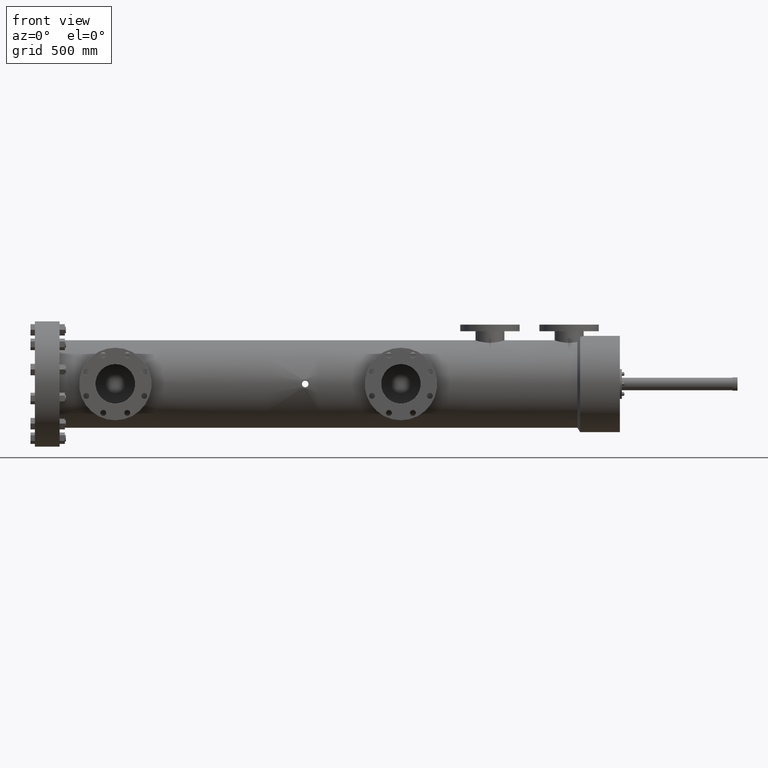
[diagram: clean part render]
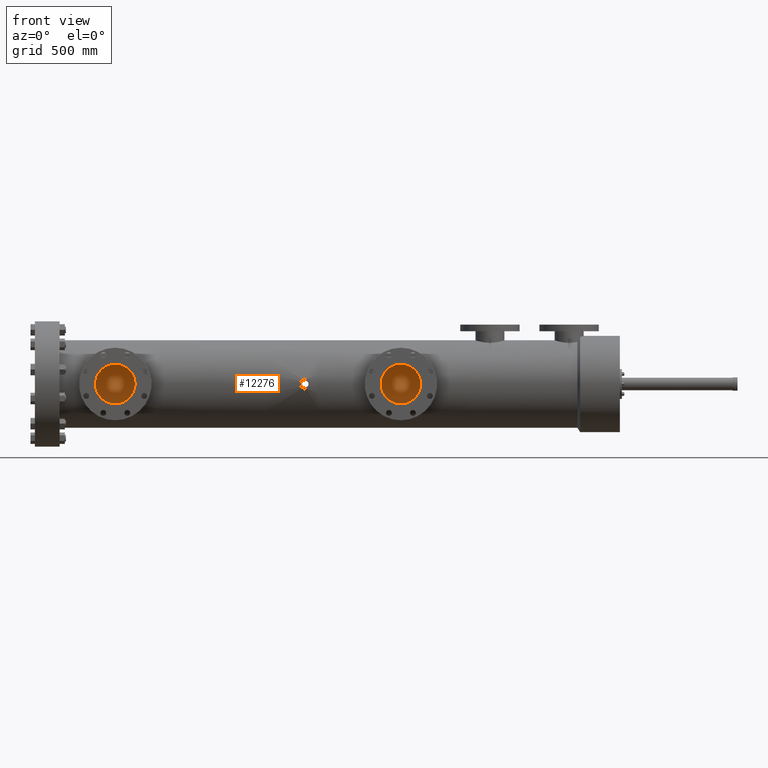
[diagram: same view with one face highlighted and labeled with its STEP entity id]
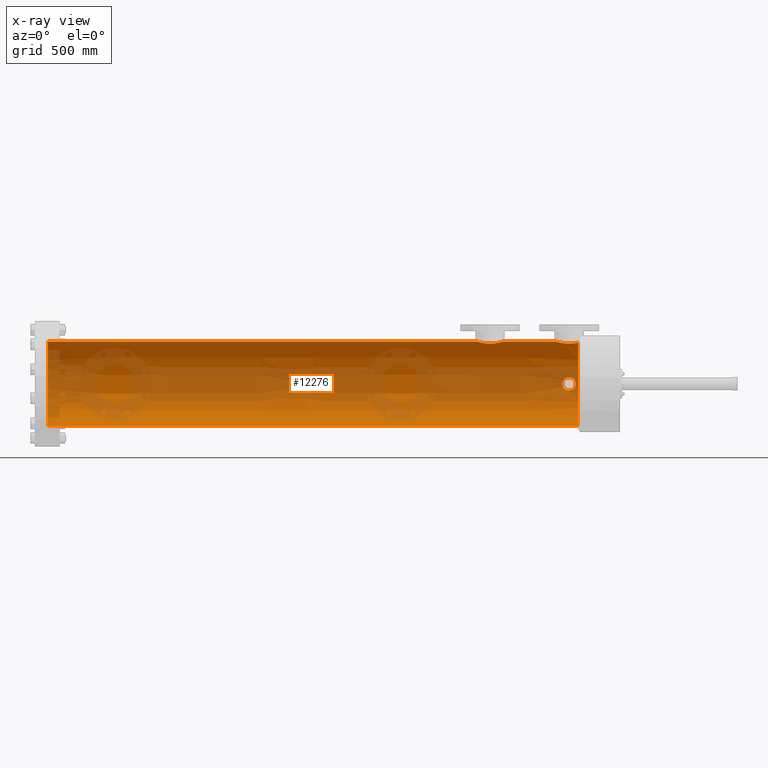
[diagram: x-ray of the same camera — body ghosted, the highlighted face saturated]
A machine part, front view. The second image highlights one B-rep face of the part: STEP entity #12276.
The next image is the same camera in x-ray: the body ghosted, the highlighted face saturated — about 43% of this face is hidden behind the body in this view.
In plain terms, the highlighted conical surface has half-angle 0.002 deg.
Its self-contained STEP definition (entity closure, byte-faithful):
#39 = CARTESIAN_POINT ( 'NONE',  ( 774.7515573465067291, 190.5651086152822131, -0.5828154985786139219 ) ) ;
#95 = CARTESIAN_POINT ( 'NONE',  ( 735.2943642979090555, 190.5763399683012551, 0.4246746664004160121 ) ) ;
#156 = CARTESIAN_POINT ( 'NONE',  ( 776.3576086705513717, 185.9998333693068560, 6.161792473806992021 ) ) ;
#171 = CARTESIAN_POINT ( 'NONE',  ( 735.1030366188920198, 190.5870761184628464, 0.2063124371501165732 ) ) ;
#173 = CARTESIAN_POINT ( 'NONE',  ( 776.5165305431140723, 190.5842960001401707, -0.3061531395251342325 ) ) ;
#191 = CARTESIAN_POINT ( 'NONE',  ( 762.0591038448136487, 185.4856544658965731, 6.292645835624000483 ) ) ;
#243 = CARTESIAN_POINT ( 'NONE',  ( 774.2058555722042001, 185.6338308467375384, 6.259605196570538155 ) ) ;
#277 = CARTESIAN_POINT ( 'NONE',  ( 761.6178618207909494, 184.6200872226516481, 6.413477519804275495 ) ) ;
#324 = CARTESIAN_POINT ( 'NONE',  ( 773.9653253697863420, 185.3641546145277630, 6.316673119454299545 ) ) ;
#356 = CARTESIAN_POINT ( 'NONE',  ( 762.6755032292510350, 185.9594205289845661, 6.173511399441822256 ) ) ;
#401 = CARTESIAN_POINT ( 'NONE',  ( 773.9508210611377308, 185.3445829754314218, 6.320369488365783717 ) ) ;
#436 = CARTESIAN_POINT ( 'NONE',  ( 761.6936061369038953, 184.8712320950696153, 6.390765523371238821 ) ) ;
#488 = CARTESIAN_POINT ( 'NONE',  ( 775.7223654910030746, 186.1573915326143549, 6.112544261708623416 ) ) ;
#523 = CARTESIAN_POINT ( 'NONE',  ( 762.9514890501737909, 186.0671911915963221, 6.140886457887309469 ) ) ;
#694 = LINE ( 'NONE', #2256, #7138 ) ;
#801 = CARTESIAN_POINT ( 'NONE',  ( 735.9561004864335700, 190.5831985610140009, -0.3053144933246385029 ) ) ;
#861 = CARTESIAN_POINT ( 'NONE',  ( 765.4978910570342805, 184.6825818361337781, 6.409049507614184016 ) ) ;
#1227 = CARTESIAN_POINT ( 'NONE',  ( 735.9653586397062099, 190.5837976854255942, 0.2914875042189448151 ) ) ;
#1231 = ORIENTED_EDGE ( 'NONE', *, *, #3403, .F. ) ;
#1289 = CARTESIAN_POINT ( 'NONE',  ( 775.4330240403340895, 190.5143722272065361, 0.9932728679551260376 ) ) ;
#1290 = EDGE_CURVE ( 'NONE', #25036, #14658, #3951, .T. ) ;
#1374 = CARTESIAN_POINT ( 'NONE',  ( 776.5579970289397806, 190.5905631075838755, 0.1306359843923250164 ) ) ;
#1461 = CARTESIAN_POINT ( 'NONE',  ( 774.6965750805709376, 190.5722417299324434, 0.5005380053930319484 ) ) ;
#1631 = CARTESIAN_POINT ( 'NONE',  ( 775.7912782403737992, 190.5173056736092860, 0.9743293047734086221 ) ) ;
#1696 = CARTESIAN_POINT ( 'NONE',  ( 773.5649761354594602, 184.1634428412521913, 6.430128034697045969 ) ) ;
#1800 = CARTESIAN_POINT ( 'NONE',  ( 735.2288322069838387, 190.5793748844642153, -0.3760375926104062572 ) ) ;
#1833 = CARTESIAN_POINT ( 'NONE',  ( 775.1220539202734017, 190.5286541556944258, -0.8971532133720813151 ) ) ;
#1876 = CARTESIAN_POINT ( 'NONE',  ( 698.3182562679656940, 184.1613553879231517, 0.0000000000000000000 ) ) ;
#1888 = CARTESIAN_POINT ( 'NONE',  ( 735.3980331656415501, 190.5729016295352665, -0.4737400652188835104 ) ) ;
#1896 = CARTESIAN_POINT ( 'NONE',  ( 735.5587819821047333, 190.5709101236874403, 0.5000000000000544009 ) ) ;
#1962 = CARTESIAN_POINT ( 'NONE',  ( 735.1818171770789831, 190.5819325235951283, 0.3301327903724006751 ) ) ;
#2049 = VERTEX_POINT ( 'NONE', #22262 ) ;
#2054 = CARTESIAN_POINT ( 'NONE',  ( 735.0715943200171978, 190.5893840140284397, -0.1136597667678679174 ) ) ;
#2119 = CARTESIAN_POINT ( 'NONE',  ( 776.2444310484091829, 186.0451164575074472, 6.148109644990564782 ) ) ;
#2154 = CARTESIAN_POINT ( 'NONE',  ( 762.3469416205480229, 185.7508387383043669, 6.230388685319546482 ) ) ;
#2167 = CARTESIAN_POINT ( 'NONE',  ( 774.5667925363004542, 190.5911983280040545, -0.06568513254108573896 ) ) ;
#2256 = CARTESIAN_POINT ( 'NONE',  ( 698.3182562679656940, 184.1613553879231517, 6.427948391113559978 ) ) ;
#2312 = CARTESIAN_POINT ( 'NONE',  ( 763.2371024747344563, 186.1374008669916407, 6.118670490266116424 ) ) ;
#2369 = CARTESIAN_POINT ( 'NONE',  ( 775.4297743759275363, 186.1612281877528687, 6.111292355305110391 ) ) ;
#2404 = CARTESIAN_POINT ( 'NONE',  ( 762.8274303095962523, 186.0226302417981685, 6.154541459335480802 ) ) ;
#2430 = CARTESIAN_POINT ( 'NONE',  ( 736.0074432802209685, 190.5866022122447987, -0.2212936326735157055 ) ) ;
#2448 = CARTESIAN_POINT ( 'NONE',  ( 773.9226440350281564, 185.3050793387506303, 6.327636448114230205 ) ) ;
#2489 = CARTESIAN_POINT ( 'NONE',  ( 763.4330672459097968, 186.1593309147696402, 6.111536047584561260 ) ) ;
#2515 = CARTESIAN_POINT ( 'NONE',  ( 736.0213825182054279, 190.5875866659651763, -0.1918188493781887438 ) ) ;
#2752 = VERTEX_POINT ( 'NONE', #16517 ) ;
#2935 = CARTESIAN_POINT ( 'NONE',  ( 774.5711422764557028, 190.5905125734019521, 0.1303889035314003964 ) ) ;
#2944 = CARTESIAN_POINT ( 'NONE',  ( 736.0428132569561512, 190.5891713527556135, 0.1295509383142088300 ) ) ;
#3030 = CARTESIAN_POINT ( 'NONE',  ( 736.0523771706161824, 190.5899012489577444, 0.08143230342846627390 ) ) ;
#3184 = CARTESIAN_POINT ( 'NONE',  ( 774.6174371842620303, 190.5835287572200230, 0.3219059481049643678 ) ) ;
#3205 = CARTESIAN_POINT ( 'NONE',  ( 735.5587819821047333, 190.5709101236874403, 0.5000000000000544009 ) ) ;
#3403 = EDGE_CURVE ( 'NONE', #14658, #14939, #22492, .T. ) ;
#3442 = CARTESIAN_POINT ( 'NONE',  ( 774.9815895603047693, 190.5399600805375258, 0.8129069057186742997 ) ) ;
#3474 = CARTESIAN_POINT ( 'NONE',  ( 765.5653099672541657, 184.1634323763099133, 6.429896278714609004 ) ) ;
#3531 = CARTESIAN_POINT ( 'NONE',  ( 776.3779177030537539, 190.5651919722611183, 0.5824305359296086948 ) ) ;
#3612 = CARTESIAN_POINT ( 'NONE',  ( 775.8699139778052540, 190.5206590914466176, 0.9522022155647410502 ) ) ;
#3621 = B_SPLINE_CURVE_WITH_KNOTS ( 'NONE', 3,
 ( #20368, #18295, #8523, #24033, #24303, #12275, #16376, #22271, #18033, #10461, #12188, #16295, #12518, #6625, #801, #18119, #8259, #2430, #2515, #4477, #6541, #16209, #18204, #6452, #24213, #16723, #12863, #3030, #2944, #14824, #12604, #16817, #12953, #20716, #1227, #4990, #4907, #18730, #22785, #14913, #14576, #18557, #6803, #10972, #6716, #16553, #20452, #14656, #6883, #3205 ),
 .UNSPECIFIED., .F., .F.,
 ( 4, 2, 2, 2, 2, 2, 2, 2, 2, 1, 2, 2, 2, 2, 2, 2, 2, 2, 2, 2, 2, 2, 1, 2, 2, 4 ),
 ( 0.05108341003128268054, 0.05356536368776870782, 0.05480634051601171453, 0.05604731734425472817, 0.05852927100074074851, 0.05977024782898817529, 0.06101122465723560206, 0.06349317831373786636, 0.06473415514198896381, 0.06597513197024004739, 0.06721610879849113096, 0.06845708562674221453, 0.07093903928324640784, 0.07218001611149851837, 0.07342099293975061503, 0.07590294659625476670, 0.07714392342450687723, 0.07838490025275898776, 0.07962587708101109829, 0.08086685390926320882, 0.08334880756577496552, 0.08458978439403083693, 0.08583076122228672222, 0.08707173805054259363, 0.08831271487879846505, 0.09079466853531022175 ),
 .UNSPECIFIED. ) ;
#3641 = VECTOR ( 'NONE', #16315, 39.37007874015748854 ) ;
#3650 = DIRECTION ( 'NONE',  ( 0.0000000000000000000, 0.0000000000000000000, -1.000000000000000000 ) ) ;
#3677 = B_SPLINE_CURVE_WITH_KNOTS ( 'NONE', 3,
 ( #4117, #11988, #4367, #14127, #277, #22160, #10001, #21911, #436, #11904, #6170, #16181, #13959, #8399, #12066, #8064, #191, #10348, #19821, #17841, #13878, #2154, #6093, #21831, #356, #2404, #16089, #23835, #523, #15922, #16010, #2312, #18088, #14214, #2489, #4283, #19904, #4447, #20076, #8141, #4199, #17917, #18002, #6248, #10087, #8319, #14046, #19991, #8233, #21987, #10174, #22077, #10262, #6423, #20166, #861, #12657, #22242, #20601, #24275 ),
 .UNSPECIFIED., .F., .F.,
 ( 4, 2, 2, 2, 2, 2, 2, 2, 2, 2, 2, 2, 2, 2, 2, 2, 2, 2, 2, 2, 2, 2, 2, 2, 2, 2, 2, 2, 2, 4 ),
 ( 0.2096621842787107781, 0.2196502926755316276, 0.2221473197747369510, 0.2246443468739423022, 0.2296384010723498681, 0.2346324552707574340, 0.2371294823699612309, 0.2396265094691650277, 0.2496146178659764958, 0.2521116449651775171, 0.2546086720643785384, 0.2596027262627708665, 0.2695908346595642380, 0.2720878617587623727, 0.2745848888579604519, 0.2795789430563457856, 0.2845729972547310638, 0.2870700243539290319, 0.2895670514531269446, 0.2995551598499187063, 0.3045492140483197496, 0.3095432682467208485, 0.3195313766435142755, 0.3295194850403077025, 0.3345135392387081352, 0.3395075934371085680, 0.3494957018339093779, 0.3544897560323110319, 0.3594838102307126304, 0.3694719186275133294 ),
 .UNSPECIFIED. ) ;
#3769 = CARTESIAN_POINT ( 'NONE',  ( 765.5653092483007640, 184.1617015782632620, 6.429896614148695733 ) ) ;
#3777 = CARTESIAN_POINT ( 'NONE',  ( 735.1101247131223317, 190.5865758934488099, 0.2213049319171640772 ) ) ;
#3859 = CARTESIAN_POINT ( 'NONE',  ( 735.3373091580809842, 190.5747125784820355, 0.4485746766602241586 ) ) ;
#3886 = CARTESIAN_POINT ( 'NONE',  ( 774.5680181602683660, 190.5910081349346967, -0.08221355146656098012 ) ) ;
#3951 = B_SPLINE_CURVE_WITH_KNOTS ( 'NONE', 3,
 ( #1696, #21877, #23969, #23893, #12034, #20128, #8196, #4086, #6138, #10136, #12114, #6219, #2448, #401, #324, #17810, #8036, #6061, #243, #14013, #4248, #19786, #15800, #11872, #17968, #21798, #22038, #15886, #13926, #21953, #14178, #14094, #12210, #2369, #16054, #4334, #18055, #488, #16141, #6301, #4165, #4411, #19871, #2119, #18142, #156, #17887, #8107, #18229, #10653, #16577, #14595, #10397, #4666 ),
 .UNSPECIFIED., .F., .F.,
 ( 4, 2, 2, 2, 2, 2, 2, 2, 2, 2, 2, 2, 2, 2, 2, 2, 2, 2, 2, 2, 2, 2, 2, 2, 2, 2, 4 ),
 ( 0.1184754652731668384, 0.1258794878670591311, 0.1332835104609514376, 0.1369855217578963280, 0.1406875330548412184, 0.1480915556487286122, 0.1499425612972024591, 0.1517935669456763059, 0.1554955782426197253, 0.1628996008365015125, 0.1666016121334464306, 0.1703036234303913488, 0.1777076460242900946, 0.1851116686181888404, 0.1869626742666611330, 0.1888136799151334810, 0.1925156912120677410, 0.1999197138059362611, 0.2017707194544033911, 0.2036217251028704933, 0.2073237363998044480, 0.2147277589936614217, 0.2184297702905899363, 0.2202807759390493780, 0.2221317815875087920, 0.2295358041813159999, 0.2369398267751232079 ),
 .UNSPECIFIED. ) ;
#3972 = CARTESIAN_POINT ( 'NONE',  ( 774.9042477869141976, 190.5473821585410690, -0.7535844624674279402 ) ) ;
#4054 = CARTESIAN_POINT ( 'NONE',  ( 774.5651704203149848, 190.5914502002733286, -0.03278521875423418691 ) ) ;
#4063 = VERTEX_POINT ( 'NONE', #24912 ) ;
#4086 = CARTESIAN_POINT ( 'NONE',  ( 773.7146748623202939, 184.9242055959032882, 6.384885541127463426 ) ) ;
#4099 = CARTESIAN_POINT ( 'NONE',  ( 735.0756269763263617, 190.5890787915352291, -0.1297276018896044436 ) ) ;
#4111 = B_SPLINE_CURVE_WITH_KNOTS ( 'NONE', 3,
 ( #1896, #13139, #23941, #24454, #11798, #7971, #9907, #13694, #3859, #11889, #95, #19546, #11556, #1962, #21643, #21733, #7793, #3777, #171, #15820, #13862, #5741, #17652, #23327, #5908, #19462, #17744, #2054, #4099, #7706, #17823, #15732, #5993, #19721, #6077, #25267, #19803, #1800, #25354, #9660, #15475, #11633, #13607, #1888, #15560, #23732, #16245, #19972, #4350 ),
 .UNSPECIFIED., .F., .F.,
 ( 4, 2, 2, 2, 2, 2, 2, 2, 2, 2, 2, 2, 2, 2, 2, 1, 2, 2, 2, 2, 2, 2, 2, 2, 4 ),
 ( 0.01136161700840032651, 0.01260292304035720741, 0.01384422907231408657, 0.01632684113623822028, 0.01756814716820032096, 0.01880945320016242511, 0.02129206526409538336, 0.02377467732802833814, 0.02501598335999477216, 0.02625728939196120271, 0.02873990145589406381, 0.02998120748786049436, 0.03122251351982692491, 0.03370512558375977907, 0.03494643161572619228, 0.03618773764769260548, 0.03742904367965901868, 0.03867034971162543189, 0.04115296177555825136, 0.04239426780752465762, 0.04363557383949107082, 0.04611818590341507096, 0.04735949193538196295, 0.04860079796734885493, 0.05108341003128268054 ),
 .UNSPECIFIED. ) ;
#4117 = CARTESIAN_POINT ( 'NONE',  ( 761.5653099672540520, 184.1634323763099133, 6.429780394193252313 ) ) ;
#4165 = CARTESIAN_POINT ( 'NONE',  ( 775.8686829819263266, 186.1408480317097656, 6.117932568625019663 ) ) ;
#4199 = CARTESIAN_POINT ( 'NONE',  ( 764.0854868645545821, 186.0957372953721460, 6.132013986825921137 ) ) ;
#4248 = CARTESIAN_POINT ( 'NONE',  ( 774.3544131580453040, 185.7562028980829325, 6.229299022440591749 ) ) ;
#4253 = VERTEX_POINT ( 'NONE', #21933 ) ;
#4283 = CARTESIAN_POINT ( 'NONE',  ( 763.4992915001399751, 186.1626173790483278, 6.110462681510800742 ) ) ;
#4334 = CARTESIAN_POINT ( 'NONE',  ( 775.6489126529592113, 186.1618300520264881, 6.111090658187568359 ) ) ;
#4350 = CARTESIAN_POINT ( 'NONE',  ( 735.5587819821047333, 190.5709101236874403, -0.5000000000000544009 ) ) ;
#4367 = CARTESIAN_POINT ( 'NONE',  ( 761.5780996170980188, 184.4252616566900542, 6.425681895108833253 ) ) ;
#4380 = EDGE_CURVE ( 'NONE', #22680, #4063, #3621, .T. ) ;
#4411 = CARTESIAN_POINT ( 'NONE',  ( 776.0124298476180229, 186.1151758452344609, 6.126203694765413488 ) ) ;
#4447 = CARTESIAN_POINT ( 'NONE',  ( 763.6981183716425221, 186.1634055732376964, 6.110210297705883420 ) ) ;
#4477 = CARTESIAN_POINT ( 'NONE',  ( 736.0323851971148770, 190.5883955954360545, -0.1611437048480106604 ) ) ;
#4666 = CARTESIAN_POINT ( 'NONE',  ( 776.9391352988310473, 185.6166071794199013, 6.263389678457415677 ) ) ;
#4907 = CARTESIAN_POINT ( 'NONE',  ( 735.9346085877175483, 190.5819214555514804, 0.3301901266214414821 ) ) ;
#4990 = CARTESIAN_POINT ( 'NONE',  ( 735.9555194098885522, 190.5831800014929911, 0.3047467318944301895 ) ) ;
#5138 = CARTESIAN_POINT ( 'NONE',  ( 774.6284677939573839, 190.5819066329850386, 0.3526728847632236152 ) ) ;
#5200 = CARTESIAN_POINT ( 'NONE',  ( 696.5682505649399445, 184.1613553879231517, 0.0000000000000000000 ) ) ;
#5218 = CARTESIAN_POINT ( 'NONE',  ( 774.9550031683277211, 190.5424520775293331, 0.7931664323379434833 ) ) ;
#5391 = CARTESIAN_POINT ( 'NONE',  ( 776.4325421556866331, 190.5722838632141816, 0.5006125489082950963 ) ) ;
#5477 = CARTESIAN_POINT ( 'NONE',  ( 775.3051792424853375, 190.5185452381206517, 0.9661422096112813884 ) ) ;
#5516 = EDGE_CURVE ( 'NONE', #19995, #20093, #20772, .T. ) ;
#5732 = CARTESIAN_POINT ( 'NONE',  ( 765.5653099672541657, 184.1630862371837907, 6.429896390524644900 ) ) ;
#5742 = CARTESIAN_POINT ( 'NONE',  ( 773.5649772248250429, 184.1613553879231517, 6.430128373560217270 ) ) ;
#5741 = CARTESIAN_POINT ( 'NONE',  ( 735.0652182703837525, 190.5898702291905806, 0.08162045969467945916 ) ) ;
#5859 = CARTESIAN_POINT ( 'NONE',  ( 774.6681234535485601, 190.5762540947816888, -0.4430102134294776617 ) ) ;
#5908 = CARTESIAN_POINT ( 'NONE',  ( 735.0587756646835942, 190.5903686846785092, 0.01612385488753306784 ) ) ;
#5924 = FACE_BOUND ( 'NONE', #15536, .T. ) ;
#5938 = CARTESIAN_POINT ( 'NONE',  ( 774.6986405103549487, 190.5720471493673358, -0.5008377719357305358 ) ) ;
#5942 = ORIENTED_EDGE ( 'NONE', *, *, #7241, .T. ) ;
#5983 = DIRECTION ( 'NONE',  ( 0.0000000000000000000, 0.0000000000000000000, -1.000000000000000000 ) ) ;
#5993 = CARTESIAN_POINT ( 'NONE',  ( 735.1255078316979734, 190.5855205362816491, -0.2500820559305814150 ) ) ;
#6019 = EDGE_LOOP ( 'NONE', ( #18010, #14016 ) ) ;
#6025 = CARTESIAN_POINT ( 'NONE',  ( 775.7275046070672033, 190.5154085755088715, -0.9865954871636023471 ) ) ;
#6061 = CARTESIAN_POINT ( 'NONE',  ( 774.1369496287398988, 185.5670185656323099, 6.275051840483104826 ) ) ;
#6077 = CARTESIAN_POINT ( 'NONE',  ( 735.1614385998474290, 190.5831769867313596, -0.3052874919526218922 ) ) ;
#6093 = CARTESIAN_POINT ( 'NONE',  ( 762.3992060489816822, 185.7895974161339154, 6.220338775416065502 ) ) ;
#6138 = CARTESIAN_POINT ( 'NONE',  ( 773.7336677925154618, 184.9688285508126455, 6.379384783861752339 ) ) ;
#6156 = CARTESIAN_POINT ( 'NONE',  ( 776.5113868111652664, 190.5835348962229432, -0.3217127710399183549 ) ) ;
#6170 = CARTESIAN_POINT ( 'NONE',  ( 761.7717005080988883, 185.0507111344743123, 6.368250640194803580 ) ) ;
#6185 = CARTESIAN_POINT ( 'NONE',  ( 773.5649761354594602, 184.1627469561558144, 6.430128260606646329 ) ) ;
#6219 = CARTESIAN_POINT ( 'NONE',  ( 773.9089447591499038, 185.2851132665824991, 6.331213692691389561 ) ) ;
#6248 = CARTESIAN_POINT ( 'NONE',  ( 764.4551307323952187, 185.9593525139665928, 6.173582528649150802 ) ) ;
#6301 = CARTESIAN_POINT ( 'NONE',  ( 775.8202886081427323, 186.1476886423984354, 6.115709268154783551 ) ) ;
#6423 = CARTESIAN_POINT ( 'NONE',  ( 765.4370497348290883, 184.8711415807422043, 6.390885130942090875 ) ) ;
#6452 = CARTESIAN_POINT ( 'NONE',  ( 736.0587599829913188, 190.5903954531152920, -0.03294443695781966441 ) ) ;
#6541 = CARTESIAN_POINT ( 'NONE',  ( 736.0419006071064132, 190.5891040586598137, -0.1298602828305510382 ) ) ;
#6625 = CARTESIAN_POINT ( 'NONE',  ( 735.9354150534086330, 190.5819359457511553, -0.3304706690224575860 ) ) ;
#6716 = CARTESIAN_POINT ( 'NONE',  ( 735.7196077471760418, 190.5729130625650214, 0.4737116116099782115 ) ) ;
#6781 = AXIS2_PLACEMENT_3D ( 'NONE', #1876, #11876, #5983 ) ;
#6803 = CARTESIAN_POINT ( 'NONE',  ( 735.7797735717568912, 190.5747089254424793, 0.4488097811508083845 ) ) ;
#6883 = CARTESIAN_POINT ( 'NONE',  ( 735.5914012567219515, 190.5709110715756935, 0.5000000000000545120 ) ) ;
#6886 = EDGE_CURVE ( 'NONE', #16412, #4253, #9334, .T. ) ;
#6927 = CARTESIAN_POINT ( 'NONE',  ( 761.5653099672541657, 184.1630862205069832, 6.429780506010695618 ) ) ;
#7102 = CARTESIAN_POINT ( 'NONE',  ( 761.5653106862249615, 184.1617015615828734, 6.429780729675043993 ) ) ;
#7126 = CARTESIAN_POINT ( 'NONE',  ( 776.2238368586798742, 190.5474227775704605, 0.7524136650834568618 ) ) ;
#7138 = VECTOR ( 'NONE', #19933, 39.37007874015748854 ) ;
#7155 = CARTESIAN_POINT ( 'NONE',  ( 776.2827637103415555, 190.5538161385228477, -0.6958044137371428572 ) ) ;
#7208 = CARTESIAN_POINT ( 'NONE',  ( 775.6297117973025479, 190.5136502155374387, 0.9978332816766967150 ) ) ;
#7241 = EDGE_CURVE ( 'NONE', #4253, #16412, #17578, .T. ) ;
#7283 = EDGE_CURVE ( 'NONE', #20093, #25036, #22864, .T. ) ;
#7379 = CARTESIAN_POINT ( 'NONE',  ( 776.5006976870248536, 190.5819578698050805, 0.3527330495188100712 ) ) ;
#7466 = CARTESIAN_POINT ( 'NONE',  ( 775.8854943846647529, 190.5214270309551807, 0.9470667878704147613 ) ) ;
#7626 = CARTESIAN_POINT ( 'NONE',  ( 765.5653088887836475, 184.1613553879231517, 6.429896614138280064 ) ) ;
#7706 = CARTESIAN_POINT ( 'NONE',  ( 735.0851477865085144, 190.5883704253711812, -0.1610548324724067337 ) ) ;
#7738 = CARTESIAN_POINT ( 'NONE',  ( 774.6755019720856126, 190.5752265895092989, -0.4576345486871723489 ) ) ;
#7793 = CARTESIAN_POINT ( 'NONE',  ( 735.1255989041812882, 190.5855143634568094, 0.2502431595524183816 ) ) ;
#7827 = CARTESIAN_POINT ( 'NONE',  ( 775.6949801740795465, 190.5146569519271225, -0.9914180172047798445 ) ) ;
#7917 = CARTESIAN_POINT ( 'NONE',  ( 774.9545754298763995, 190.5423143409278453, -0.7948377144225605706 ) ) ;
#7971 = CARTESIAN_POINT ( 'NONE',  ( 735.4288825860993484, 190.5721423483821582, 0.4839372267597107924 ) ) ;
#7972 = CARTESIAN_POINT ( 'NONE',  ( 776.5387152897998249, 190.5876206989142645, -0.2275872862674983843 ) ) ;
#8001 = CARTESIAN_POINT ( 'NONE',  ( 775.1517788645860492, 190.5266529383184775, -0.9112017885401755279 ) ) ;
#8036 = CARTESIAN_POINT ( 'NONE',  ( 774.0407125379967965, 185.4591826357098512, 6.297914156660559648 ) ) ;
#8064 = CARTESIAN_POINT ( 'NONE',  ( 761.9767636086578477, 185.3855459495601963, 6.313138131960899457 ) ) ;
#8075 = CARTESIAN_POINT ( 'NONE',  ( 774.8020551388348167, 190.5589117818841771, -0.6468733841777588589 ) ) ;
#8107 = CARTESIAN_POINT ( 'NONE',  ( 776.4242983204763959, 185.9695876427171299, 6.170739453635887273 ) ) ;
#8141 = CARTESIAN_POINT ( 'NONE',  ( 764.0215894904218885, 186.1117937352971978, 6.126905243673303580 ) ) ;
#8196 = CARTESIAN_POINT ( 'NONE',  ( 773.6798193787295759, 184.8331881456786618, 6.395102154961294083 ) ) ;
#8233 = CARTESIAN_POINT ( 'NONE',  ( 765.0695170145700104, 185.4831352408266412, 6.292767917103274655 ) ) ;
#8259 = CARTESIAN_POINT ( 'NONE',  ( 735.9920120874775193, 190.5855426804068884, -0.2501589656360618252 ) ) ;
#8319 = CARTESIAN_POINT ( 'NONE',  ( 764.7885725466896929, 185.7511752206361280, 6.230690661442954692 ) ) ;
#8399 = CARTESIAN_POINT ( 'NONE',  ( 761.8683360875546668, 185.2223754020930926, 6.341706733894418413 ) ) ;
#8523 = CARTESIAN_POINT ( 'NONE',  ( 735.6243505494521742, 190.5711677812024334, -0.4967514741937444911 ) ) ;
#8980 = CARTESIAN_POINT ( 'NONE',  ( 761.5653110457245702, 184.1613553879231517, 6.429780729685459661 ) ) ;
#9002 = CARTESIAN_POINT ( 'NONE',  ( 774.5647684555348178, 190.5915127265639057, 0.06549410095123443798 ) ) ;
#9008 = CARTESIAN_POINT ( 'NONE',  ( 776.0929686366641818, 190.5352734182307870, -0.8489609191380786957 ) ) ;
#9166 = CARTESIAN_POINT ( 'NONE',  ( 775.2110621088589824, 190.5230850817602857, 0.9357990418020231127 ) ) ;
#9277 = FACE_OUTER_BOUND ( 'NONE', #20172, .T. ) ;
#9324 = CARTESIAN_POINT ( 'NONE',  ( 776.0079079733128538, 190.5285105230398699, 0.8985785668431892637 ) ) ;
#9334 = B_SPLINE_CURVE_WITH_KNOTS ( 'NONE', 3,
 ( #14563, #9002, #2935, #16622, #12845, #10959, #24706, #3184, #5138, #16538, #1461, #13278, #17228, #23159, #19057, #5218, #3442, #22855, #18975, #9166, #24870, #5477, #17044, #1289, #19217, #25105, #11385, #7208, #13195, #13360, #11301, #1631, #22935, #3612, #7466, #21213, #19136, #9324, #20950, #9409, #11133, #7126, #17139, #20868, #13107, #16960, #3531, #5391, #15312, #7379, #21126, #17311, #23017, #1374, #23089, #15067 ),
 .UNSPECIFIED., .F., .F.,
 ( 4, 2, 2, 2, 2, 2, 2, 2, 2, 2, 2, 2, 2, 2, 2, 2, 2, 2, 2, 2, 2, 2, 2, 2, 2, 2, 2, 4 ),
 ( 0.09543672868724367708, 0.1004064080286519167, 0.1016488278640035187, 0.1028912476993551206, 0.1053760873700582273, 0.1103457667114645518, 0.1153154460528708902, 0.1178002857235778134, 0.1202851253942847365, 0.1252548047356985550, 0.1277396444064054781, 0.1302244840771123735, 0.1351941634185157837, 0.1364365832538666223, 0.1376790030892174888, 0.1401638427599192216, 0.1426486824306209544, 0.1438911022659718209, 0.1451335221013226873, 0.1501032014427066963, 0.1525880411133986869, 0.1550728807840907053, 0.1575577204547827237, 0.1600425601254747421, 0.1650122394668587233, 0.1674970791375508250, 0.1699819188082429267, 0.1749515981496271577 ),
 .UNSPECIFIED. ) ;
#9409 = CARTESIAN_POINT ( 'NONE',  ( 776.1466501386690879, 190.5399076604840900, 0.8135823789142834217 ) ) ;
#9660 = CARTESIAN_POINT ( 'NONE',  ( 735.2675478474928923, 190.5775003657300033, -0.4067551319959890610 ) ) ;
#9689 = CARTESIAN_POINT ( 'NONE',  ( 775.4994514043725076, 190.5135841292262171, -0.9982345522402966687 ) ) ;
#9748 = CARTESIAN_POINT ( 'NONE',  ( 775.8871169706096680, 190.5212442407757010, -0.9486120386880455557 ) ) ;
#9859 = CARTESIAN_POINT ( 'NONE',  ( 775.4012776314054918, 190.5153488320859196, -0.9869369833730676778 ) ) ;
#9907 = CARTESIAN_POINT ( 'NONE',  ( 735.3977096099723667, 190.5728575839785606, 0.4744782333907113792 ) ) ;
#9938 = CARTESIAN_POINT ( 'NONE',  ( 774.5777362427540993, 190.5895064440389604, -0.1637882586611802138 ) ) ;
#9991 = CARTESIAN_POINT ( 'NONE',  ( 776.4627720002692968, 190.5765002866542090, -0.4441413686482211798 ) ) ;
#10001 = CARTESIAN_POINT ( 'NONE',  ( 761.6427979739569309, 184.7157204222528435, 6.405917552011721305 ) ) ;
#10013 = ORIENTED_EDGE ( 'NONE', *, *, #13203, .T. ) ;
#10016 = CARTESIAN_POINT ( 'NONE',  ( 774.8462334717743261, 190.5537958095087845, -0.6956075202843663430 ) ) ;
#10057 = ORIENTED_EDGE ( 'NONE', *, *, #12565, .F. ) ;
#10070 = CARTESIAN_POINT ( 'NONE',  ( 776.4943403605669801, 190.5810427610710462, -0.3680876817557550140 ) ) ;
#10087 = CARTESIAN_POINT ( 'NONE',  ( 764.5701099263231981, 185.8976975579394946, 6.191451178600899219 ) ) ;
#10136 = CARTESIAN_POINT ( 'NONE',  ( 773.7952347421995682, 185.1001183204807035, 6.361851802781554710 ) ) ;
#10174 = CARTESIAN_POINT ( 'NONE',  ( 765.1916355279372510, 185.3293349003936896, 6.323155278112501776 ) ) ;
#10262 = CARTESIAN_POINT ( 'NONE',  ( 765.3618430062367679, 185.0519802602660775, 6.369068067731166849 ) ) ;
#10348 = CARTESIAN_POINT ( 'NONE',  ( 762.1741049913357529, 185.6006542532556693, 6.266680284223852482 ) ) ;
#10397 = CARTESIAN_POINT ( 'NONE',  ( 776.8684375324367011, 185.6834612722219902, 6.247854526779882178 ) ) ;
#10461 = CARTESIAN_POINT ( 'NONE',  ( 735.8499999188074980, 190.5775165648176994, -0.4067661292010156249 ) ) ;
#10653 = CARTESIAN_POINT ( 'NONE',  ( 776.5542425842091916, 185.9043449995640174, 6.189646598000981825 ) ) ;
#10770 = DIRECTION ( 'NONE',  ( -1.000000000000000000, -0.0000000000000000000, -0.0000000000000000000 ) ) ;
#10947 = CARTESIAN_POINT ( 'NONE',  ( 735.5587819821047333, 190.5709101236874403, -0.5000000000000544009 ) ) ;
#10959 = CARTESIAN_POINT ( 'NONE',  ( 774.5987003208023225, 190.5863239608727042, 0.2587878634746448858 ) ) ;
#10972 = CARTESIAN_POINT ( 'NONE',  ( 735.7502988611545334, 190.5737234503789352, 0.4627256089520092597 ) ) ;
#11133 = CARTESIAN_POINT ( 'NONE',  ( 776.1729371500492789, 190.5423677169706593, 0.7941320550275063894 ) ) ;
#11301 = CARTESIAN_POINT ( 'NONE',  ( 775.7273339483003838, 190.5153446339132302, 0.9870250583154810409 ) ) ;
#11376 = CARTESIAN_POINT ( 'NONE',  ( 765.5653099672541657, 184.1634323763099133, 6.429896278714609004 ) ) ;
#11385 = CARTESIAN_POINT ( 'NONE',  ( 775.5967570328698457, 190.5133969238889335, 0.9994382832620830603 ) ) ;
#11502 = CARTESIAN_POINT ( 'NONE',  ( 776.1747592505345210, 190.5423622488766568, -0.7947443087630481351 ) ) ;
#11556 = CARTESIAN_POINT ( 'NONE',  ( 735.2285011193112041, 190.5793621758232348, 0.3768350768965784137 ) ) ;
#11633 = CARTESIAN_POINT ( 'NONE',  ( 735.3370354258398720, 190.5746670123482716, -0.4493345220435174259 ) ) ;
#11636 = EDGE_CURVE ( 'NONE', #2752, #14939, #14044, .T. ) ;
#11733 = FACE_BOUND ( 'NONE', #6019, .T. ) ;
#11744 = CARTESIAN_POINT ( 'NONE',  ( 775.8247096218954084, 190.5183378783412138, -0.9676449527128446748 ) ) ;
#11798 = CARTESIAN_POINT ( 'NONE',  ( 735.4769800085944098, 190.5714096794876298, 0.4935338998098270924 ) ) ;
#11832 = CARTESIAN_POINT ( 'NONE',  ( 775.2422924068731618, 190.5212129339316220, -0.9486969035757065738 ) ) ;
#11872 = CARTESIAN_POINT ( 'NONE',  ( 774.5973841844732988, 185.9164885427257445, 6.186213006499965417 ) ) ;
#11876 = DIRECTION ( 'NONE',  ( 1.000000000000000000, 0.0000000000000000000, 0.0000000000000000000 ) ) ;
#11889 = CARTESIAN_POINT ( 'NONE',  ( 735.3083643474412838, 190.5757765193562250, 0.4330825101193984117 ) ) ;
#11892 = CARTESIAN_POINT ( 'NONE',  ( 776.5307828364901752, 190.5864190385773327, -0.2592181481337396676 ) ) ;
#11904 = CARTESIAN_POINT ( 'NONE',  ( 761.7437091770744928, 184.9916993813514523, 6.376233718492364311 ) ) ;
#11917 = CARTESIAN_POINT ( 'NONE',  ( 774.8127579119753818, 190.5576441250809978, -0.6592846812251368371 ) ) ;
#11988 = CARTESIAN_POINT ( 'NONE',  ( 761.5653099672539383, 184.2946649114797140, 6.429738002628564431 ) ) ;
#12034 = CARTESIAN_POINT ( 'NONE',  ( 773.6216814916365365, 184.6462986145902789, 6.412505325674096035 ) ) ;
#12066 = CARTESIAN_POINT ( 'NONE',  ( 761.8858998362417196, 185.2500080440902934, 6.337017649780496420 ) ) ;
#12070 = ORIENTED_EDGE ( 'NONE', *, *, #1290, .F. ) ;
#12114 = CARTESIAN_POINT ( 'NONE',  ( 773.8423715484475451, 185.1842194254860772, 6.348788547038756391 ) ) ;
#12188 = CARTESIAN_POINT ( 'NONE',  ( 735.8632207093761508, 190.5781323271293672, -0.3969745148972676496 ) ) ;
#12210 = CARTESIAN_POINT ( 'NONE',  ( 775.2851245018575810, 186.1443616974370343, 6.116773063595519311 ) ) ;
#12275 = CARTESIAN_POINT ( 'NONE',  ( 735.7195095595885732, 190.5729104931402560, -0.4737464280718589604 ) ) ;
#12276 = ADVANCED_FACE ( 'NONE', ( #9277, #5924, #11733 ), #19128, .F. ) ;
#12339 = VERTEX_POINT ( 'NONE', #25427 ) ;
#12518 = CARTESIAN_POINT ( 'NONE',  ( 735.9008304833172360, 190.5800300182329750, -0.3650597981005604953 ) ) ;
#12565 = EDGE_CURVE ( 'NONE', #2049, #22432, #694, .T. ) ;
#12604 = CARTESIAN_POINT ( 'NONE',  ( 736.0146200617632530, 190.5871091320202311, 0.2061058299254090176 ) ) ;
#12657 = CARTESIAN_POINT ( 'NONE',  ( 765.5138910721260572, 184.6187636010735957, 6.413928218067154852 ) ) ;
#12820 = CARTESIAN_POINT ( 'NONE',  ( 761.5653101469899866, 184.1623938999732388, 6.429780673746382291 ) ) ;
#12845 = CARTESIAN_POINT ( 'NONE',  ( 774.5906910781915258, 190.5875326480539513, 0.2267932075306927364 ) ) ;
#12863 = CARTESIAN_POINT ( 'NONE',  ( 736.0548015960067687, 190.5900885124555941, 0.06508116435740705918 ) ) ;
#12953 = CARTESIAN_POINT ( 'NONE',  ( 735.9920461382621397, 190.5855449303520857, 0.2501061270800358227 ) ) ;
#13107 = CARTESIAN_POINT ( 'NONE',  ( 776.3165822880318956, 190.5576817120335136, 0.6597232637233171326 ) ) ;
#13125 = ORIENTED_EDGE ( 'NONE', *, *, #5516, .F. ) ;
#13139 = CARTESIAN_POINT ( 'NONE',  ( 735.5424680182100019, 190.5709096496176187, 0.5000000000000544009 ) ) ;
#13195 = CARTESIAN_POINT ( 'NONE',  ( 775.6461053473743732, 190.5138403206668727, 0.9966263576328200369 ) ) ;
#13203 = EDGE_CURVE ( 'NONE', #2049, #2752, #15646, .T. ) ;
#13278 = CARTESIAN_POINT ( 'NONE',  ( 774.7698367930597669, 190.5627361165566356, 0.6102082003660267429 ) ) ;
#13360 = CARTESIAN_POINT ( 'NONE',  ( 775.6950394232062536, 190.5145952365479332, 0.9918157485668581685 ) ) ;
#13420 = ORIENTED_EDGE ( 'NONE', *, *, #23777, .F. ) ;
#13558 = CARTESIAN_POINT ( 'NONE',  ( 775.5973020286094197, 190.5133373983872218, -0.9998163023497362856 ) ) ;
#13607 = CARTESIAN_POINT ( 'NONE',  ( 735.3824253771603026, 190.5733129014445808, -0.4681523361804617589 ) ) ;
#13637 = CARTESIAN_POINT ( 'NONE',  ( 774.5647684555350452, 190.5915127265639342, 3.146514585047392215E-27 ) ) ;
#13694 = CARTESIAN_POINT ( 'NONE',  ( 735.3522959367327303, 190.5742114230318975, 0.4556665324809229811 ) ) ;
#13723 = CARTESIAN_POINT ( 'NONE',  ( 774.6540470371703577, 190.5782359415665326, -0.4133064047045987843 ) ) ;
#13726 = CARTESIAN_POINT ( 'NONE',  ( 774.5647684555350452, 190.5915127265639342, 3.146514585047392215E-27 ) ) ;
#13835 = CARTESIAN_POINT ( 'NONE',  ( 776.0069284096675801, 190.5286659192640855, -0.8972522042661457142 ) ) ;
#13862 = CARTESIAN_POINT ( 'NONE',  ( 735.0747923307264955, 190.5891401618100645, 0.1297002900249996094 ) ) ;
#13878 = CARTESIAN_POINT ( 'NONE',  ( 762.2710868071127379, 185.6885738478931387, 6.245830946577670240 ) ) ;
#13926 = CARTESIAN_POINT ( 'NONE',  ( 775.0935359507411704, 186.1072391863953897, 6.128677650737027527 ) ) ;
#13959 = CARTESIAN_POINT ( 'NONE',  ( 761.8344508087001259, 185.1660326224128994, 6.350875435678811520 ) ) ;
#14013 = CARTESIAN_POINT ( 'NONE',  ( 774.3163749531547637, 185.7265511182379782, 6.236826601634432699 ) ) ;
#14016 = ORIENTED_EDGE ( 'NONE', *, *, #4380, .F. ) ;
#14032 = CARTESIAN_POINT ( 'NONE',  ( 776.3581946562202347, 190.5627083524545355, -0.6090346412966110012 ) ) ;
#14044 = LINE ( 'NONE', #24322, #3641 ) ;
#14046 = CARTESIAN_POINT ( 'NONE',  ( 764.8886582670006646, 185.6685944905612473, 6.251429089960256924 ) ) ;
#14094 = CARTESIAN_POINT ( 'NONE',  ( 775.2370617818935443, 186.1369805977199121, 6.119164287535142854 ) ) ;
#14127 = CARTESIAN_POINT ( 'NONE',  ( 761.6105464886670688, 184.5876931622934478, 6.415714498046027892 ) ) ;
#14178 = CARTESIAN_POINT ( 'NONE',  ( 775.1652010976847578, 186.1232322927091900, 6.123578143927344009 ) ) ;
#14214 = CARTESIAN_POINT ( 'NONE',  ( 763.4001382340525197, 186.1568719849674949, 6.112339082031441606 ) ) ;
#14311 = CARTESIAN_POINT ( 'NONE',  ( 773.5649772248250429, 184.1613553879231517, 6.430128373560217270 ) ) ;
#14367 = CARTESIAN_POINT ( 'NONE',  ( 776.3269172800260094, 190.5589302698499807, -0.6471309097934403454 ) ) ;
#14506 = CARTESIAN_POINT ( 'NONE',  ( 776.9391352988310473, 184.1613553879231517, -6.430226126728461722 ) ) ;
#14563 = CARTESIAN_POINT ( 'NONE',  ( 774.5647684555350452, 190.5915127265639342, 3.146514585047392215E-27 ) ) ;
#14576 = CARTESIAN_POINT ( 'NONE',  ( 735.8228271730069991, 190.5763396942350028, 0.4249121366406225508 ) ) ;
#14595 = CARTESIAN_POINT ( 'NONE',  ( 776.7937629589727067, 185.7443609993572124, 6.232584394557497909 ) ) ;
#14635 = AXIS2_PLACEMENT_3D ( 'NONE', #5200, #10770, #20598 ) ;
#14656 = CARTESIAN_POINT ( 'NONE',  ( 735.6238464856122619, 190.5711610506430702, 0.4968387683318608583 ) ) ;
#14658 = VERTEX_POINT ( 'NONE', #20390 ) ;
#14675 = CARTESIAN_POINT ( 'NONE',  ( 776.2250180085475222, 190.5474300141001152, -0.7534910082836656642 ) ) ;
#14781 = CARTESIAN_POINT ( 'NONE',  ( 761.5653099672540520, 184.1634323763099133, 6.429780394193252313 ) ) ;
#14824 = CARTESIAN_POINT ( 'NONE',  ( 736.0333775342418221, 190.5884584737936223, 0.1607200481417717930 ) ) ;
#14840 = CARTESIAN_POINT ( 'NONE',  ( 698.3182562679656940, 184.1613553879231517, 6.427948391113559978 ) ) ;
#14893 = CARTESIAN_POINT ( 'NONE',  ( 761.5653110457245702, 184.1613553879231517, 6.429780729685459661 ) ) ;
#14913 = CARTESIAN_POINT ( 'NONE',  ( 735.8638333524589825, 190.5781159375073344, 0.3975228399193793671 ) ) ;
#14939 = VERTEX_POINT ( 'NONE', #14506 ) ;
#15067 = CARTESIAN_POINT ( 'NONE',  ( 776.5644167331923882, 190.5915706586317810, 9.072100111558745976E-17 ) ) ;
#15312 = CARTESIAN_POINT ( 'NONE',  ( 776.4632038745426144, 190.5765617727539620, 0.4431775574223023040 ) ) ;
#15420 = ORIENTED_EDGE ( 'NONE', *, *, #24575, .F. ) ;
#15475 = CARTESIAN_POINT ( 'NONE',  ( 735.3083205867977767, 190.5757370456996114, -0.4339784830298338836 ) ) ;
#15506 = CARTESIAN_POINT ( 'NONE',  ( 774.6473336122351157, 190.5791925463737755, -0.3981862653340085267 ) ) ;
#15536 = EDGE_LOOP ( 'NONE', ( #22921, #5942 ) ) ;
#15560 = CARTESIAN_POINT ( 'NONE',  ( 735.4294738819004351, 190.5721913180621243, -0.4832693313355708176 ) ) ;
#15592 = CARTESIAN_POINT ( 'NONE',  ( 775.5320866152050030, 190.5133344892478533, -0.9998226333256473586 ) ) ;
#15646 = CIRCLE ( 'NONE', #14635, 6.427897691472888475 ) ;
#15732 = CARTESIAN_POINT ( 'NONE',  ( 735.1100900876759852, 190.5865783441178394, -0.2212308929221905307 ) ) ;
#15765 = CARTESIAN_POINT ( 'NONE',  ( 774.5728934134948531, 190.5902538450701513, -0.1314027152039812518 ) ) ;
#15789 = CARTESIAN_POINT ( 'NONE',  ( 775.9773952101267014, 190.5266762477991733, -0.9112073315203500501 ) ) ;
#15800 = CARTESIAN_POINT ( 'NONE',  ( 774.4735909862067729, 185.8401149349418233, 6.207201693404065246 ) ) ;
#15820 = CARTESIAN_POINT ( 'NONE',  ( 735.0842363608251162, 190.5884272255555629, 0.1608759912963711736 ) ) ;
#15823 = CARTESIAN_POINT ( 'NONE',  ( 776.5003009688507518, 190.5819096009666964, -0.3526587739874961214 ) ) ;
#15886 = CARTESIAN_POINT ( 'NONE',  ( 775.0696512026769369, 186.1012904529671061, 6.130563422563557907 ) ) ;
#15922 = CARTESIAN_POINT ( 'NONE',  ( 763.0455318138507437, 186.0958209633564024, 6.131955184409216386 ) ) ;
#16010 = CARTESIAN_POINT ( 'NONE',  ( 763.1089243484410645, 186.1117608720443855, 6.126887872111995037 ) ) ;
#16054 = CARTESIAN_POINT ( 'NONE',  ( 775.5268210231757848, 186.1654649984477601, 6.109896552126921065 ) ) ;
#16089 = CARTESIAN_POINT ( 'NONE',  ( 762.8583232735059028, 186.0345963211374851, 6.150907730701946186 ) ) ;
#16141 = CARTESIAN_POINT ( 'NONE',  ( 775.7469552860576414, 186.1552981455518250, 6.113228545896995492 ) ) ;
#16181 = CARTESIAN_POINT ( 'NONE',  ( 761.8181711369820732, 185.1373833655395345, 6.355343972401129804 ) ) ;
#16209 = CARTESIAN_POINT ( 'NONE',  ( 736.0459295184859911, 190.5894092003804587, -0.1138345847866508165 ) ) ;
#16245 = CARTESIAN_POINT ( 'NONE',  ( 735.4932779685070727, 190.5711632343196982, -0.4967609947282091709 ) ) ;
#16295 = CARTESIAN_POINT ( 'NONE',  ( 735.8887053132502842, 190.5793926460453065, -0.3760615637180955706 ) ) ;
#16315 = DIRECTION ( 'NONE',  ( 0.9999999995803368069, 0.0000000000000000000, -2.897112881493199885E-05 ) ) ;
#16376 = CARTESIAN_POINT ( 'NONE',  ( 735.7351230538538402, 190.5733226882945530, -0.4681586881175829329 ) ) ;
#16412 = VERTEX_POINT ( 'NONE', #13726 ) ;
#16517 = CARTESIAN_POINT ( 'NONE',  ( 696.5682505649399445, 184.1613553879231517, -6.427897691472888475 ) ) ;
#16538 = CARTESIAN_POINT ( 'NONE',  ( 774.6658919736996722, 190.5765225244176122, 0.4429773953586051416 ) ) ;
#16553 = CARTESIAN_POINT ( 'NONE',  ( 735.6882991040369006, 190.5722032187923105, 0.4832110644546664391 ) ) ;
#16577 = CARTESIAN_POINT ( 'NONE',  ( 776.6366656246901812, 185.8548035121141595, 6.203482080270395826 ) ) ;
#16622 = CARTESIAN_POINT ( 'NONE',  ( 774.5870971301259260, 190.5880786321728237, 0.2107573512954650508 ) ) ;
#16723 = CARTESIAN_POINT ( 'NONE',  ( 736.0580082943215530, 190.5903368184789883, 0.03231260620741710499 ) ) ;
#16817 = CARTESIAN_POINT ( 'NONE',  ( 736.0075564906838963, 190.5866100743462255, 0.2210709032489484305 ) ) ;
#16830 = DIRECTION ( 'NONE',  ( 0.9999999995803368069, 3.547940017089211670E-21, 2.897112881493199885E-05 ) ) ;
#16933 = CARTESIAN_POINT ( 'NONE',  ( 776.0647471048312127, 190.5329952207996485, -0.8658874202899480288 ) ) ;
#16960 = CARTESIAN_POINT ( 'NONE',  ( 776.3582069106280414, 190.5627099980532080, 0.6090155113853635838 ) ) ;
#17044 = CARTESIAN_POINT ( 'NONE',  ( 775.3369746094741686, 190.5173257728091301, 0.9741115633533172780 ) ) ;
#17139 = CARTESIAN_POINT ( 'NONE',  ( 776.2482583208565075, 190.5499994218330926, 0.7302881859983295643 ) ) ;
#17228 = CARTESIAN_POINT ( 'NONE',  ( 774.8112915424544553, 190.5576628302798099, 0.6606132343015519437 ) ) ;
#17311 = CARTESIAN_POINT ( 'NONE',  ( 776.5309520491185822, 190.5864443608325871, 0.2586297542054642462 ) ) ;
#17578 = B_SPLINE_CURVE_WITH_KNOTS ( 'NONE', 3,
 ( #19724, #17989, #21818, #21895, #23913, #7972, #11892, #173, #6156, #15823, #10070, #9991, #23735, #23819, #14032, #14367, #23456, #24482, #7155, #14675, #11502, #17932, #9008, #16933, #25328, #13835, #15789, #9748, #11744, #21588, #6025, #7827, #25299, #21677, #13558, #15592, #9689, #21767, #9859, #23683, #11832, #8001, #1833, #19834, #23517, #7917, #3972, #10016, #17686, #11917, #8075, #23436, #39, #19583, #5938, #7738, #5859, #13723, #15506, #19674, #23607, #9938, #15765, #3886, #2167, #4054, #25385, #13637 ),
 .UNSPECIFIED., .F., .F.,
 ( 4, 2, 2, 2, 2, 2, 2, 2, 2, 2, 2, 2, 2, 2, 2, 2, 2, 2, 2, 2, 2, 2, 2, 2, 2, 2, 2, 2, 2, 2, 2, 2, 2, 4 ),
 ( 0.01592093352049484684, 0.01840580211946968303, 0.02089067071844451576, 0.02337553931741935195, 0.02461797361690528860, 0.02586040791639122177, 0.03083014511433927046, 0.03331501371331330175, 0.03455744801280363765, 0.03579988231229398743, 0.04076961951024021119, 0.04201205380972232450, 0.04325448810920443782, 0.04573935670816848403, 0.05070909390608676487, 0.05195152820556894757, 0.05319396250505113721, 0.05567883110400497632, 0.05816369970295882930, 0.06064856830191267534, 0.06561830549982036742, 0.06810317409876931460, 0.07058804269771826179, 0.07555777989560752417, 0.07680021419508176184, 0.07804264849455599951, 0.08052751709350447484, 0.08301238569245295018, 0.08425481999192960259, 0.08549725429140625499, 0.09046699148932493828, 0.09295186008828429380, 0.09419429438776399932, 0.09543672868724367708 ),
 .UNSPECIFIED. ) ;
#17652 = CARTESIAN_POINT ( 'NONE',  ( 735.0627928868470917, 190.5900574143132076, 0.06532146329183621813 ) ) ;
#17686 = CARTESIAN_POINT ( 'NONE',  ( 774.8348473518475430, 190.5550859896368934, -0.6836542421025015859 ) ) ;
#17744 = CARTESIAN_POINT ( 'NONE',  ( 735.0619721172848813, 190.5901177862818940, -0.06527940644946990389 ) ) ;
#17810 = CARTESIAN_POINT ( 'NONE',  ( 774.0098254708449304, 185.4219625068727737, 6.305483898899150397 ) ) ;
#17823 = CARTESIAN_POINT ( 'NONE',  ( 735.0961553457668742, 190.5875617462756679, -0.1917574297461647759 ) ) ;
#17841 = CARTESIAN_POINT ( 'NONE',  ( 762.2461789292873391, 185.6670823260203917, 6.251050319724373416 ) ) ;
#17887 = CARTESIAN_POINT ( 'NONE',  ( 776.3800427898738690, 185.9899860272684862, 6.164724064223594091 ) ) ;
#17917 = CARTESIAN_POINT ( 'NONE',  ( 764.2121820830275283, 186.0570909438853278, 6.144075422874458958 ) ) ;
#17932 = CARTESIAN_POINT ( 'NONE',  ( 776.1068156898763846, 190.5364377615036915, -0.8401825120443713324 ) ) ;
#17968 = CARTESIAN_POINT ( 'NONE',  ( 774.6828992676962571, 185.9610064232748812, 6.173314914851143698 ) ) ;
#17989 = CARTESIAN_POINT ( 'NONE',  ( 776.5644167331923882, 190.5915706586318095, -0.03286621924402696043 ) ) ;
#18002 = CARTESIAN_POINT ( 'NONE',  ( 764.2740086681908451, 186.0348018441114846, 6.150933040324987999 ) ) ;
#18010 = ORIENTED_EDGE ( 'NONE', *, *, #20979, .F. ) ;
#18033 = CARTESIAN_POINT ( 'NONE',  ( 735.8092641999893431, 190.5757525094380185, -0.4339642158220166634 ) ) ;
#18055 = CARTESIAN_POINT ( 'NONE',  ( 775.6733703215244304, 186.1606542705831941, 6.111476365449473036 ) ) ;
#18079 = B_SPLINE_CURVE_WITH_KNOTS ( 'NONE', 3,
 ( #11376, #5732, #19371, #3769, #7626 ),
 .UNSPECIFIED., .F., .F.,
 ( 4, 1, 4 ),
 ( 0.04988998861977393673, 0.04991614335638763778, 0.04994229809300133882 ),
 .UNSPECIFIED. ) ;
#18088 = CARTESIAN_POINT ( 'NONE',  ( 763.3018880279008727, 186.1471010938939230, 6.115520266238450908 ) ) ;
#18119 = CARTESIAN_POINT ( 'NONE',  ( 735.9834962827661684, 190.5849719173135668, -0.2643624334939606579 ) ) ;
#18142 = CARTESIAN_POINT ( 'NONE',  ( 776.2899875280764945, 186.0280458846463034, 6.153325798590917550 ) ) ;
#18204 = CARTESIAN_POINT ( 'NONE',  ( 736.0555790957276940, 190.5901455698296445, -0.06539699899433989994 ) ) ;
#18229 = CARTESIAN_POINT ( 'NONE',  ( 776.4461670853705755, 185.9590177594216982, 6.173828952968483996 ) ) ;
#18280 = CARTESIAN_POINT ( 'NONE',  ( 773.5649761354594602, 184.1634428412521913, 6.430128034697045969 ) ) ;
#18295 = CARTESIAN_POINT ( 'NONE',  ( 735.5917938145074686, 190.5709110829830593, -0.5000000000000545120 ) ) ;
#18390 = ORIENTED_EDGE ( 'NONE', *, *, #22775, .F. ) ;
#18458 = VERTEX_POINT ( 'NONE', #3474 ) ;
#18557 = CARTESIAN_POINT ( 'NONE',  ( 735.8086317990562293, 190.5757690006865062, 0.4334080886680157785 ) ) ;
#18730 = CARTESIAN_POINT ( 'NONE',  ( 735.9236061335859631, 190.5812846605126367, 0.3422995307258122066 ) ) ;
#18741 = CARTESIAN_POINT ( 'NONE',  ( 765.5653088887836475, 184.1613553879231517, 6.429896614138280064 ) ) ;
#18975 = CARTESIAN_POINT ( 'NONE',  ( 775.1205955110027617, 190.5285370451109941, 0.8982035574582939441 ) ) ;
#19057 = CARTESIAN_POINT ( 'NONE',  ( 774.9043847997385228, 190.5474849251055502, 0.7515574672001456014 ) ) ;
#19128 = CONICAL_SURFACE ( 'NONE', #6781, 6.427948391113559978, 2.897112881898470592E-05 ) ;
#19136 = CARTESIAN_POINT ( 'NONE',  ( 775.9319319480654258, 190.5239411602795769, 0.9300405878119174519 ) ) ;
#19217 = CARTESIAN_POINT ( 'NONE',  ( 775.4979352708541001, 190.5133428507423616, 0.9997631484705646887 ) ) ;
#19371 = CARTESIAN_POINT ( 'NONE',  ( 765.5653097875358526, 184.1623939333304918, 6.429896558246894323 ) ) ;
#19462 = CARTESIAN_POINT ( 'NONE',  ( 735.0587947307024024, 190.5903672024202535, -0.03283189096730383671 ) ) ;
#19546 = CARTESIAN_POINT ( 'NONE',  ( 735.2537477102983985, 190.5780985150881861, 0.3975112941969108915 ) ) ;
#19583 = CARTESIAN_POINT ( 'NONE',  ( 774.7154010999543061, 190.5697983255440420, -0.5287484718890868018 ) ) ;
#19674 = CARTESIAN_POINT ( 'NONE',  ( 774.6158125397204230, 190.5837269741763578, -0.3221747169398056498 ) ) ;
#19721 = CARTESIAN_POINT ( 'NONE',  ( 735.1340082333963437, 190.5849512003955510, -0.2642684552682644239 ) ) ;
#19724 = CARTESIAN_POINT ( 'NONE',  ( 776.5644167331923882, 190.5915706586317810, 9.072100111558745976E-17 ) ) ;
#19769 = DIRECTION ( 'NONE',  ( -1.000000000000000000, -0.0000000000000000000, -0.0000000000000000000 ) ) ;
#19786 = CARTESIAN_POINT ( 'NONE',  ( 774.4329557406101685, 185.8129509941772710, 6.214496448486150904 ) ) ;
#19803 = CARTESIAN_POINT ( 'NONE',  ( 735.2167149038424441, 190.5800111615769481, -0.3650422468236153017 ) ) ;
#19821 = CARTESIAN_POINT ( 'NONE',  ( 762.1977149305943158, 185.6231425127049874, 6.261469800138987019 ) ) ;
#19834 = CARTESIAN_POINT ( 'NONE',  ( 775.0639140111734378, 190.5329572404702674, -0.8660517636096635163 ) ) ;
#19871 = CARTESIAN_POINT ( 'NONE',  ( 776.1063530102343293, 186.0912211964654261, 6.133852850450554506 ) ) ;
#19904 = CARTESIAN_POINT ( 'NONE',  ( 763.5326131791758826, 186.1634390260098257, 6.110194290812652973 ) ) ;
#19933 = DIRECTION ( 'NONE',  ( 0.9999999995803368069, 3.547940017089211670E-21, 2.897112881493199885E-05 ) ) ;
#19972 = CARTESIAN_POINT ( 'NONE',  ( 735.5257613923930649, 190.5709091641373618, -0.5000000000000544009 ) ) ;
#19991 = CARTESIAN_POINT ( 'NONE',  ( 765.0259242824093917, 185.5312030992457153, 6.282443076800944048 ) ) ;
#19995 = VERTEX_POINT ( 'NONE', #18741 ) ;
#20076 = CARTESIAN_POINT ( 'NONE',  ( 763.8286140777847777, 186.1503603818511579, 6.114532825331004062 ) ) ;
#20090 = CARTESIAN_POINT ( 'NONE',  ( 773.5649764986513901, 184.1620511383923997, 6.430128373539178099 ) ) ;
#20093 = VERTEX_POINT ( 'NONE', #5742 ) ;
#20128 = CARTESIAN_POINT ( 'NONE',  ( 773.6639140521373292, 184.7866192994041796, 6.399831124132539628 ) ) ;
#20166 = CARTESIAN_POINT ( 'NONE',  ( 765.4593143835363662, 184.8092907983455575, 6.397480592628599361 ) ) ;
#20172 = EDGE_LOOP ( 'NONE', ( #10057, #10013, #23943, #1231, #12070, #25224, #13125, #18390, #13420, #15420 ) ) ;
#20368 = CARTESIAN_POINT ( 'NONE',  ( 735.5587819821047333, 190.5709101236874403, -0.5000000000000544009 ) ) ;
#20390 = CARTESIAN_POINT ( 'NONE',  ( 776.9391352988310473, 185.6166071794199013, 6.263389678457415677 ) ) ;
#20452 = CARTESIAN_POINT ( 'NONE',  ( 735.6722466492984722, 190.5718973449258726, 0.4872333189882037119 ) ) ;
#20598 = DIRECTION ( 'NONE',  ( 0.0000000000000000000, 0.0000000000000000000, 1.000000000000000000 ) ) ;
#20601 = CARTESIAN_POINT ( 'NONE',  ( 765.5653099672541657, 184.2956178065105917, 6.429853580109289979 ) ) ;
#20716 = CARTESIAN_POINT ( 'NONE',  ( 735.9836045614558770, 190.5849790932013264, 0.2641880385175034429 ) ) ;
#20772 = LINE ( 'NONE', #14840, #22007 ) ;
#20868 = CARTESIAN_POINT ( 'NONE',  ( 776.2945913214217626, 190.5551249158249334, 0.6839750824984145439 ) ) ;
#20950 = CARTESIAN_POINT ( 'NONE',  ( 776.0653455291084128, 190.5328289569321214, 0.8678349288449833665 ) ) ;
#20979 = EDGE_CURVE ( 'NONE', #4063, #22680, #4111, .T. ) ;
#21126 = CARTESIAN_POINT ( 'NONE',  ( 776.5117690057943491, 190.5835866007359698, 0.3218645079795900976 ) ) ;
#21213 = CARTESIAN_POINT ( 'NONE',  ( 775.9164893880083582, 190.5230670963292141, 0.9359927843927987601 ) ) ;
#21319 = AXIS2_PLACEMENT_3D ( 'NONE', #23192, #19769, #3650 ) ;
#21588 = CARTESIAN_POINT ( 'NONE',  ( 775.7438024806693875, 190.5158480017286706, -0.9837667143707489181 ) ) ;
#21643 = CARTESIAN_POINT ( 'NONE',  ( 735.1611407429502378, 190.5831959563818998, 0.3048643232740104181 ) ) ;
#21677 = CARTESIAN_POINT ( 'NONE',  ( 775.6298822298610958, 190.5135899513136337, -0.9982218126355277832 ) ) ;
#21733 = CARTESIAN_POINT ( 'NONE',  ( 735.1339984724335181, 190.5849519810043091, 0.2642426395985386089 ) ) ;
#21767 = CARTESIAN_POINT ( 'NONE',  ( 775.4341249095932653, 190.5145879947713468, -0.9918131412223574195 ) ) ;
#21798 = CARTESIAN_POINT ( 'NONE',  ( 774.8598860749224286, 186.0375139281080692, 6.150500464228892739 ) ) ;
#21818 = CARTESIAN_POINT ( 'NONE',  ( 776.5627729889134798, 190.5913144366104461, -0.06603697421609386331 ) ) ;
#21831 = CARTESIAN_POINT ( 'NONE',  ( 762.5610084120218062, 185.8978552561123081, 6.191332821528209074 ) ) ;
#21877 = CARTESIAN_POINT ( 'NONE',  ( 773.5649761354594602, 184.2620171177405268, 6.430096033903203612 ) ) ;
#21895 = CARTESIAN_POINT ( 'NONE',  ( 776.5562953154145589, 190.5903118461971530, -0.1313418970331275137 ) ) ;
#21911 = CARTESIAN_POINT ( 'NONE',  ( 761.6714945113561726, 184.8097765719589916, 6.397314628562599914 ) ) ;
#21933 = CARTESIAN_POINT ( 'NONE',  ( 776.5644167331923882, 190.5915706586317810, 9.072100111558745976E-17 ) ) ;
#21953 = CARTESIAN_POINT ( 'NONE',  ( 775.1412864707529025, 186.1182029664798279, 6.125187250111346238 ) ) ;
#21987 = CARTESIAN_POINT ( 'NONE',  ( 765.1523086905854143, 185.3823210274802591, 6.313105716690939673 ) ) ;
#22007 = VECTOR ( 'NONE', #16830, 39.37007874015748854 ) ;
#22038 = CARTESIAN_POINT ( 'NONE',  ( 774.9513567418600815, 186.0695052022566074, 6.140581613048803789 ) ) ;
#22077 = CARTESIAN_POINT ( 'NONE',  ( 765.3005116552235449, 185.1664922957834563, 6.351796742237810101 ) ) ;
#22160 = CARTESIAN_POINT ( 'NONE',  ( 761.6339790001972005, 184.6840556830645426, 6.408581683901746651 ) ) ;
#22242 = CARTESIAN_POINT ( 'NONE',  ( 765.5523334048862125, 184.4259533170598218, 6.425740281207736437 ) ) ;
#22262 = CARTESIAN_POINT ( 'NONE',  ( 696.5682505649399445, 184.1613553879231517, 6.427897691472888475 ) ) ;
#22271 = CARTESIAN_POINT ( 'NONE',  ( 735.7805527472095264, 190.5746806054010563, -0.4493246611605788421 ) ) ;
#22432 = VERTEX_POINT ( 'NONE', #14893 ) ;
#22492 = CIRCLE ( 'NONE', #21319, 6.430226126728465275 ) ;
#22680 = VERTEX_POINT ( 'NONE', #10947 ) ;
#22775 = EDGE_CURVE ( 'NONE', #18458, #19995, #18079, .T. ) ;
#22785 = CARTESIAN_POINT ( 'NONE',  ( 735.8890068671537392, 190.5793794579230394, 0.3768475106066606628 ) ) ;
#22855 = CARTESIAN_POINT ( 'NONE',  ( 775.0632244184101864, 190.5328467357593354, 0.8674988031704392588 ) ) ;
#22864 = B_SPLINE_CURVE_WITH_KNOTS ( 'NONE', 3,
 ( #14311, #20090, #6185, #18280 ),
 .UNSPECIFIED., .F., .F.,
 ( 4, 4 ),
 ( 0.1184231965763010014, 0.1184754652731668384 ),
 .UNSPECIFIED. ) ;
#22912 = B_SPLINE_CURVE_WITH_KNOTS ( 'NONE', 3,
 ( #8980, #7102, #12820, #6927, #14781 ),
 .UNSPECIFIED., .F., .F.,
 ( 4, 1, 4 ),
 ( 0.2096094924416185556, 0.2096358383601646669, 0.2096621842787107781 ),
 .UNSPECIFIED. ) ;
#22921 = ORIENTED_EDGE ( 'NONE', *, *, #6886, .T. ) ;
#22935 = CARTESIAN_POINT ( 'NONE',  ( 775.8229280000290373, 190.5185173600682162, 0.9664242120222400478 ) ) ;
#23017 = CARTESIAN_POINT ( 'NONE',  ( 776.5389071933980176, 190.5876498112675961, 0.2267748102539933475 ) ) ;
#23089 = CARTESIAN_POINT ( 'NONE',  ( 776.5644167331925019, 190.5915706586317810, 0.06573167324632674113 ) ) ;
#23159 = CARTESIAN_POINT ( 'NONE',  ( 774.8802507898335534, 190.5500330896360310, 0.7296396634987386554 ) ) ;
#23192 = CARTESIAN_POINT ( 'NONE',  ( 776.9391352988310473, 184.1613553879231517, 0.0000000000000000000 ) ) ;
#23327 = CARTESIAN_POINT ( 'NONE',  ( 735.0595661329869017, 190.5903070772348542, 0.03249018576153785143 ) ) ;
#23436 = CARTESIAN_POINT ( 'NONE',  ( 774.7709529857050939, 190.5626676173849035, -0.6089718275855987573 ) ) ;
#23456 = CARTESIAN_POINT ( 'NONE',  ( 776.3161215694004795, 190.5576515294356454, -0.6596370975908306677 ) ) ;
#23517 = CARTESIAN_POINT ( 'NONE',  ( 775.0358511328872737, 190.5352317609102215, -0.8491953700077718992 ) ) ;
#23607 = CARTESIAN_POINT ( 'NONE',  ( 774.5969003004241813, 190.5865835682120633, -0.2597607619289085124 ) ) ;
#23683 = CARTESIAN_POINT ( 'NONE',  ( 775.3046513573596030, 190.5183189341706225, -0.9676685724347553474 ) ) ;
#23732 = CARTESIAN_POINT ( 'NONE',  ( 735.4453273734327468, 190.5718909491152999, -0.4872305585565747665 ) ) ;
#23735 = CARTESIAN_POINT ( 'NONE',  ( 776.4319544267417541, 190.5722054951453970, -0.5015712917173309471 ) ) ;
#23777 = EDGE_CURVE ( 'NONE', #12339, #18458, #3677, .T. ) ;
#23819 = CARTESIAN_POINT ( 'NONE',  ( 776.3776516462905875, 190.5651584777775440, -0.5827892197930398810 ) ) ;
#23835 = CARTESIAN_POINT ( 'NONE',  ( 762.9203160921335893, 186.0568598490736463, 6.144085240226773159 ) ) ;
#23893 = CARTESIAN_POINT ( 'NONE',  ( 773.6005808330638729, 184.5514885000616800, 6.419003586119040428 ) ) ;
#23913 = CARTESIAN_POINT ( 'NONE',  ( 776.5514714940115937, 190.5895670776355928, -0.1636491524109032758 ) ) ;
#23941 = CARTESIAN_POINT ( 'NONE',  ( 735.5261102092654255, 190.5709714560910868, 0.4992035973495926315 ) ) ;
#23943 = ORIENTED_EDGE ( 'NONE', *, *, #11636, .T. ) ;
#23969 = CARTESIAN_POINT ( 'NONE',  ( 773.5722290630288853, 184.3593699774901040, 6.427798265574311110 ) ) ;
#24033 = CARTESIAN_POINT ( 'NONE',  ( 735.6722776743960139, 190.5718982898560512, -0.4872207342322069090 ) ) ;
#24213 = CARTESIAN_POINT ( 'NONE',  ( 736.0587928127291661, 190.5903980073030368, 0.01596883159094027171 ) ) ;
#24275 = CARTESIAN_POINT ( 'NONE',  ( 765.5653099672541657, 184.1634323763099133, 6.429896278714609004 ) ) ;
#24303 = CARTESIAN_POINT ( 'NONE',  ( 735.6881154754453291, 190.5721994018482235, -0.4832617094027363280 ) ) ;
#24322 = CARTESIAN_POINT ( 'NONE',  ( 698.3182562679656940, 184.1613553879231517, -6.427948391113559978 ) ) ;
#24454 = CARTESIAN_POINT ( 'NONE',  ( 735.4933041612971465, 190.5712216752132804, 0.4959680749095929375 ) ) ;
#24482 = CARTESIAN_POINT ( 'NONE',  ( 776.2940566358500973, 190.5550959416353578, -0.6839582891461970515 ) ) ;
#24538 = CARTESIAN_POINT ( 'NONE',  ( 773.5649761354594602, 184.1634428412521913, 6.430128034697045969 ) ) ;
#24575 = EDGE_CURVE ( 'NONE', #22432, #12339, #22912, .T. ) ;
#24706 = CARTESIAN_POINT ( 'NONE',  ( 774.6031140702384619, 190.5856615303084993, 0.2747290952495145544 ) ) ;
#24870 = CARTESIAN_POINT ( 'NONE',  ( 775.2420442944737715, 190.5214325479356035, 0.9469364057722429173 ) ) ;
#24912 = CARTESIAN_POINT ( 'NONE',  ( 735.5587819821047333, 190.5709101236874403, 0.5000000000000544009 ) ) ;
#25036 = VERTEX_POINT ( 'NONE', #24538 ) ;
#25105 = CARTESIAN_POINT ( 'NONE',  ( 775.5802000115495503, 190.5133342525554951, 0.9998331017190813519 ) ) ;
#25224 = ORIENTED_EDGE ( 'NONE', *, *, #7283, .F. ) ;
#25267 = CARTESIAN_POINT ( 'NONE',  ( 735.1821387323742556, 190.5819147106084301, -0.3304584306983124886 ) ) ;
#25299 = CARTESIAN_POINT ( 'NONE',  ( 775.6787109008812422, 190.5143433791907057, -0.9934206752814142005 ) ) ;
#25328 = CARTESIAN_POINT ( 'NONE',  ( 776.0503702524308665, 190.5318815551900116, -0.8740333555299694135 ) ) ;
#25354 = CARTESIAN_POINT ( 'NONE',  ( 735.2542874196914227, 190.5781173302727325, -0.3969309595121714995 ) ) ;
#25385 = CARTESIAN_POINT ( 'NONE',  ( 774.5647684555351589, 190.5915127265639910, -0.01637371585680144626 ) ) ;
#25427 = CARTESIAN_POINT ( 'NONE',  ( 761.5653099672540520, 184.1634323763099133, 6.429780394193252313 ) ) ;